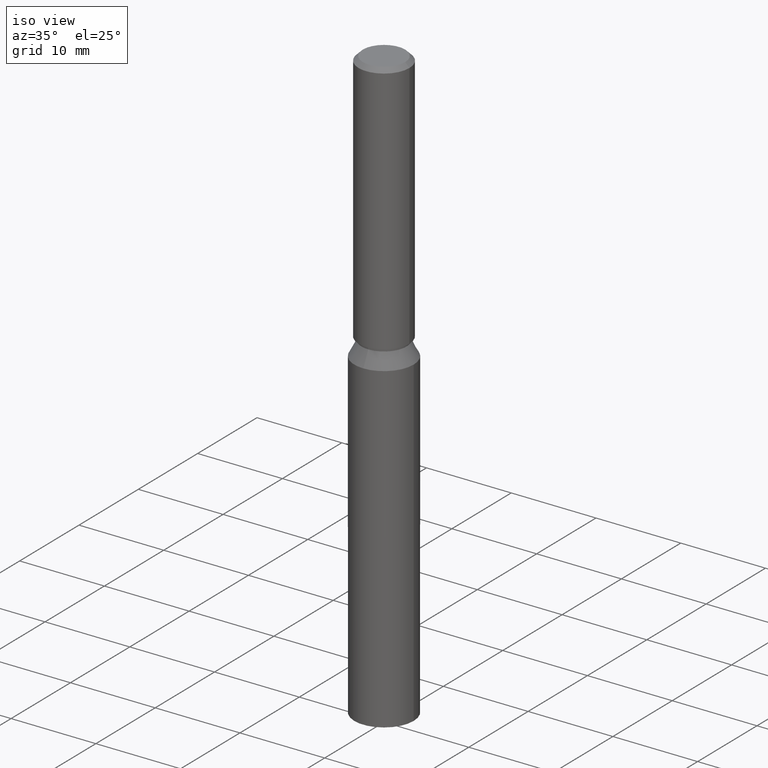
[diagram: clean part render]
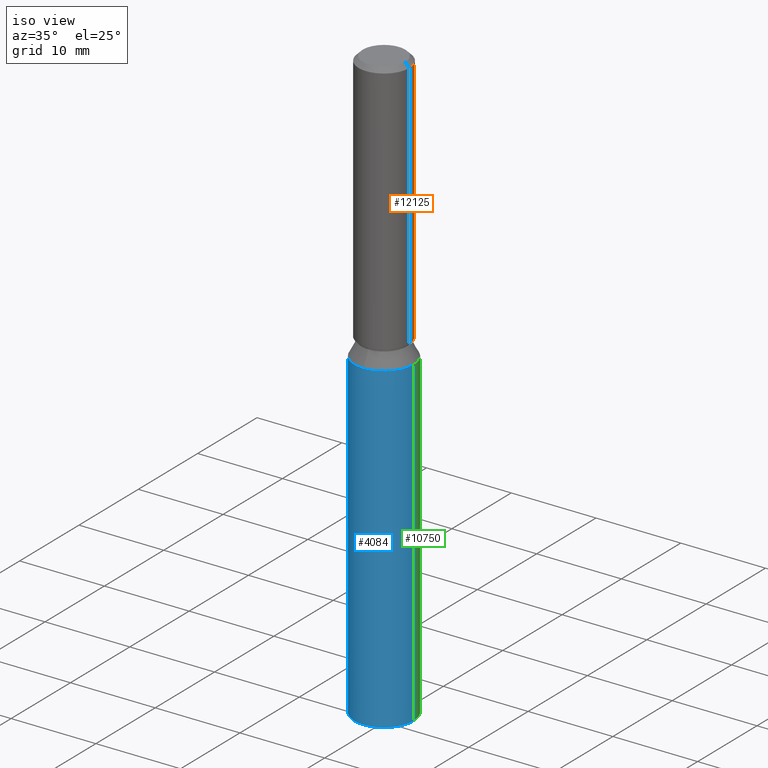
[diagram: same view with three faces highlighted in distinct colors, each labeled with its STEP entity id]
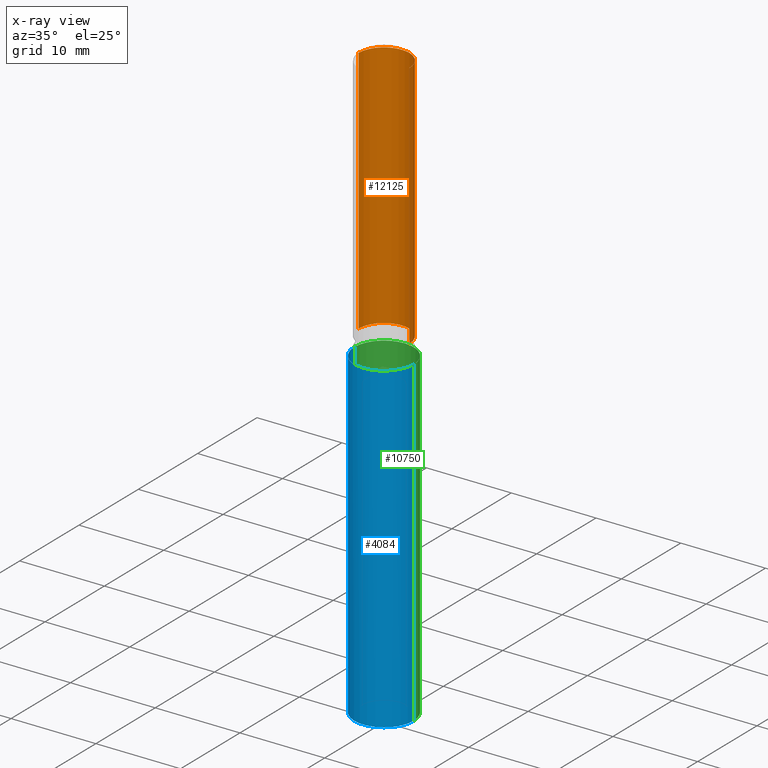
[diagram: x-ray of the same camera — body ghosted, the three highlighted faces saturated]
A machine part, iso view with three faces highlighted in distinct colors.
The next image is the same camera in x-ray (body ghosted, the three faces saturated) — at least one of them is partly hidden behind the body in this view.
Their STEP definitions:

[orange] entity #12125 — the highlighted cylindrical surface (edge-blend (fillet) strip) has radius 3 mm, axis along (-0, -0, -1).
#1198 = CARTESIAN_POINT ( 'NONE',  ( -3.000000000000000400, 0.0000000000000000000, 69.49999999999998600 ) ) ;
#1435 = DIRECTION ( 'NONE',  ( 0.0000000000000000000, 1.000000000000000000, 0.0000000000000000000 ) ) ;
#1473 = DIRECTION ( 'NONE',  ( -0.0000000000000000000, -0.0000000000000000000, -1.000000000000000000 ) ) ;
#1537 = VERTEX_POINT ( 'NONE', #1198 ) ;
#1686 = CARTESIAN_POINT ( 'NONE',  ( 3.000000000000000400, 3.673940397442060400E-016, 69.49999999999998600 ) ) ;
#1716 = DIRECTION ( 'NONE',  ( -0.0000000000000000000, -0.0000000000000000000, -1.000000000000000000 ) ) ;
#1907 = CARTESIAN_POINT ( 'NONE',  ( 3.000000000000000400, 3.673940397442060400E-016, 40.10000000000000100 ) ) ;
#1916 = VERTEX_POINT ( 'NONE', #1686 ) ;
#2077 = DIRECTION ( 'NONE',  ( 1.000000000000000000, 0.0000000000000000000, 0.0000000000000000000 ) ) ;
#2280 = CIRCLE ( 'NONE', #10904, 3.000000000000000400 ) ;
#2496 = CYLINDRICAL_SURFACE ( 'NONE', #7201, 3.000000000000000400 ) ;
#2553 = ORIENTED_EDGE ( 'NONE', *, *, #5059, .F. ) ;
#3249 = CARTESIAN_POINT ( 'NONE',  ( 0.0000000000000000000, 0.0000000000000000000, 40.10000000000000100 ) ) ;
#3781 = FACE_OUTER_BOUND ( 'NONE', #4729, .T. ) ;
#4043 = EDGE_CURVE ( 'NONE', #1537, #1916, #2280, .T. ) ;
#4257 = AXIS2_PLACEMENT_3D ( 'NONE', #3249, #5441, #1435 ) ;
#4729 = EDGE_LOOP ( 'NONE', ( #6567, #7244, #11934, #2553 ) ) ;
#4793 = LINE ( 'NONE', #12699, #12958 ) ;
#5059 = EDGE_CURVE ( 'NONE', #1537, #12953, #11077, .T. ) ;
#5140 = EDGE_CURVE ( 'NONE', #1916, #6557, #4793, .T. ) ;
#5441 = DIRECTION ( 'NONE',  ( -0.0000000000000000000, 1.967742040464204400E-018, -1.000000000000000000 ) ) ;
#5598 = EDGE_CURVE ( 'NONE', #12953, #6557, #6827, .T. ) ;
#6162 = DIRECTION ( 'NONE',  ( 0.0000000000000000000, 0.0000000000000000000, -1.000000000000000000 ) ) ;
#6401 = CARTESIAN_POINT ( 'NONE',  ( -3.000000000000000400, 0.0000000000000000000, 70.00000000000000000 ) ) ;
#6557 = VERTEX_POINT ( 'NONE', #1907 ) ;
#6567 = ORIENTED_EDGE ( 'NONE', *, *, #4043, .T. ) ;
#6661 = DIRECTION ( 'NONE',  ( -0.0000000000000000000, -0.0000000000000000000, -1.000000000000000000 ) ) ;
#6827 = CIRCLE ( 'NONE', #4257, 3.000000000000000400 ) ;
#7201 = AXIS2_PLACEMENT_3D ( 'NONE', #9631, #1716, #10642 ) ;
#7244 = ORIENTED_EDGE ( 'NONE', *, *, #5140, .T. ) ;
#7252 = CARTESIAN_POINT ( 'NONE',  ( 0.0000000000000000000, 0.0000000000000000000, 69.49999999999998600 ) ) ;
#9631 = CARTESIAN_POINT ( 'NONE',  ( 0.0000000000000000000, 0.0000000000000000000, 70.00000000000000000 ) ) ;
#10629 = VECTOR ( 'NONE', #1473, 1000.000000000000000 ) ;
#10642 = DIRECTION ( 'NONE',  ( -1.000000000000000000, 0.0000000000000000000, 0.0000000000000000000 ) ) ;
#10904 = AXIS2_PLACEMENT_3D ( 'NONE', #7252, #6162, #2077 ) ;
#11077 = LINE ( 'NONE', #6401, #10629 ) ;
#11934 = ORIENTED_EDGE ( 'NONE', *, *, #5598, .F. ) ;
#12097 = CARTESIAN_POINT ( 'NONE',  ( -3.000000000000000400, 0.0000000000000000000, 40.10000000000000100 ) ) ;
#12125 = ADVANCED_FACE ( 'NONE', ( #3781 ), #2496, .T. ) ;
#12699 = CARTESIAN_POINT ( 'NONE',  ( 3.000000000000000400, 3.673940397442060400E-016, 70.00000000000000000 ) ) ;
#12953 = VERTEX_POINT ( 'NONE', #12097 ) ;
#12958 = VECTOR ( 'NONE', #6661, 1000.000000000000000 ) ;

[blue] entity #4084 — the highlighted cylindrical surface (edge-blend (fillet) strip) has radius 3.5 mm, axis along (-0, -0, -1).
#46 = EDGE_CURVE ( 'NONE', #1335, #12492, #6606, .T. ) ;
#234 = LINE ( 'NONE', #1532, #9480 ) ;
#370 = VERTEX_POINT ( 'NONE', #5657 ) ;
#1235 = DIRECTION ( 'NONE',  ( -0.0000000000000000000, -0.0000000000000000000, -1.000000000000000000 ) ) ;
#1292 = CARTESIAN_POINT ( 'NONE',  ( 0.0000000000000000000, -7.477419753763976000E-017, 38.00000000000000000 ) ) ;
#1335 = VERTEX_POINT ( 'NONE', #6035 ) ;
#1518 = ORIENTED_EDGE ( 'NONE', *, *, #46, .T. ) ;
#1521 = VECTOR ( 'NONE', #11382, 1000.000000000000000 ) ;
#1532 = CARTESIAN_POINT ( 'NONE',  ( -3.500000000000000000, 0.0000000000000000000, 40.00000000000000000 ) ) ;
#1653 = AXIS2_PLACEMENT_3D ( 'NONE', #11914, #7868, #6005 ) ;
#2172 = ORIENTED_EDGE ( 'NONE', *, *, #3927, .T. ) ;
#3173 = CARTESIAN_POINT ( 'NONE',  ( 0.0000000000000000000, 0.0000000000000000000, 0.0000000000000000000 ) ) ;
#3261 = ORIENTED_EDGE ( 'NONE', *, *, #5688, .F. ) ;
#3927 = EDGE_CURVE ( 'NONE', #8190, #1335, #10797, .T. ) ;
#4084 = ADVANCED_FACE ( 'NONE', ( #4324 ), #11090, .T. ) ;
#4153 = LINE ( 'NONE', #12348, #1521 ) ;
#4324 = FACE_OUTER_BOUND ( 'NONE', #11392, .T. ) ;
#4661 = CARTESIAN_POINT ( 'NONE',  ( 3.500000000000000000, 4.286263797015736600E-016, 0.0000000000000000000 ) ) ;
#5657 = CARTESIAN_POINT ( 'NONE',  ( -3.500000000000000000, 0.0000000000000000000, 0.0000000000000000000 ) ) ;
#5688 = EDGE_CURVE ( 'NONE', #8190, #11787, #4153, .T. ) ;
#6005 = DIRECTION ( 'NONE',  ( 0.0000000000000000000, 1.000000000000000000, 0.0000000000000000000 ) ) ;
#6035 = CARTESIAN_POINT ( 'NONE',  ( 4.286263797015742000E-016, -3.500000000000004900, 38.00000000000000000 ) ) ;
#6350 = AXIS2_PLACEMENT_3D ( 'NONE', #9111, #1235, #8177 ) ;
#6606 = CIRCLE ( 'NONE', #1653, 3.500000000000004900 ) ;
#6867 = ORIENTED_EDGE ( 'NONE', *, *, #8762, .T. ) ;
#7868 = DIRECTION ( 'NONE',  ( -0.0000000000000000000, 1.967742040464204400E-018, -1.000000000000000000 ) ) ;
#8033 = CIRCLE ( 'NONE', #11686, 3.500000000000000000 ) ;
#8177 = DIRECTION ( 'NONE',  ( -1.000000000000000000, 0.0000000000000000000, 0.0000000000000000000 ) ) ;
#8190 = VERTEX_POINT ( 'NONE', #12811 ) ;
#8222 = DIRECTION ( 'NONE',  ( 1.000000000000000000, 0.0000000000000000000, 0.0000000000000000000 ) ) ;
#8236 = DIRECTION ( 'NONE',  ( 0.0000000000000000000, 1.000000000000000000, 0.0000000000000000000 ) ) ;
#8439 = EDGE_CURVE ( 'NONE', #12492, #370, #234, .T. ) ;
#8540 = DIRECTION ( 'NONE',  ( -0.0000000000000000000, -0.0000000000000000000, -1.000000000000000000 ) ) ;
#8714 = ORIENTED_EDGE ( 'NONE', *, *, #8439, .T. ) ;
#8762 = EDGE_CURVE ( 'NONE', #370, #11787, #8033, .T. ) ;
#9111 = CARTESIAN_POINT ( 'NONE',  ( 0.0000000000000000000, 0.0000000000000000000, 40.00000000000000000 ) ) ;
#9480 = VECTOR ( 'NONE', #8540, 1000.000000000000000 ) ;
#9750 = AXIS2_PLACEMENT_3D ( 'NONE', #1292, #12290, #8236 ) ;
#10797 = CIRCLE ( 'NONE', #9750, 3.500000000000004900 ) ;
#11090 = CYLINDRICAL_SURFACE ( 'NONE', #6350, 3.500000000000000000 ) ;
#11382 = DIRECTION ( 'NONE',  ( -0.0000000000000000000, -0.0000000000000000000, -1.000000000000000000 ) ) ;
#11392 = EDGE_LOOP ( 'NONE', ( #3261, #2172, #1518, #8714, #6867 ) ) ;
#11686 = AXIS2_PLACEMENT_3D ( 'NONE', #3173, #12235, #8222 ) ;
#11787 = VERTEX_POINT ( 'NONE', #4661 ) ;
#11914 = CARTESIAN_POINT ( 'NONE',  ( 0.0000000000000000000, -7.477419753763976000E-017, 38.00000000000000000 ) ) ;
#12235 = DIRECTION ( 'NONE',  ( 0.0000000000000000000, 0.0000000000000000000, 1.000000000000000000 ) ) ;
#12290 = DIRECTION ( 'NONE',  ( -0.0000000000000000000, 1.967742040464204400E-018, -1.000000000000000000 ) ) ;
#12348 = CARTESIAN_POINT ( 'NONE',  ( 3.500000000000000000, 4.286263797015736600E-016, 40.00000000000000000 ) ) ;
#12492 = VERTEX_POINT ( 'NONE', #12552 ) ;
#12552 = CARTESIAN_POINT ( 'NONE',  ( -3.500000000000004900, 9.629649721936179300E-032, 38.00000000000000000 ) ) ;
#12811 = CARTESIAN_POINT ( 'NONE',  ( 3.500000000000004900, 4.286263797015743000E-016, 38.00000000000000000 ) ) ;

[green] entity #10750 — the highlighted cylindrical surface (edge-blend (fillet) strip) has radius 3.5 mm, axis along (-0, -0, -1).
#196 = CYLINDRICAL_SURFACE ( 'NONE', #11091, 3.500000000000000000 ) ;
#234 = LINE ( 'NONE', #1532, #9480 ) ;
#350 = DIRECTION ( 'NONE',  ( -0.0000000000000000000, -0.0000000000000000000, -1.000000000000000000 ) ) ;
#370 = VERTEX_POINT ( 'NONE', #5657 ) ;
#550 = CARTESIAN_POINT ( 'NONE',  ( 0.0000000000000000000, 3.500000000000004900, 38.00000000000000000 ) ) ;
#1521 = VECTOR ( 'NONE', #11382, 1000.000000000000000 ) ;
#1532 = CARTESIAN_POINT ( 'NONE',  ( -3.500000000000000000, 0.0000000000000000000, 40.00000000000000000 ) ) ;
#1668 = ORIENTED_EDGE ( 'NONE', *, *, #9853, .T. ) ;
#1893 = DIRECTION ( 'NONE',  ( 1.000000000000000000, 0.0000000000000000000, 0.0000000000000000000 ) ) ;
#3380 = VERTEX_POINT ( 'NONE', #550 ) ;
#4025 = ORIENTED_EDGE ( 'NONE', *, *, #5688, .T. ) ;
#4153 = LINE ( 'NONE', #12348, #1521 ) ;
#4403 = CIRCLE ( 'NONE', #5783, 3.500000000000004900 ) ;
#4469 = EDGE_LOOP ( 'NONE', ( #10302, #1668, #4025, #9993, #10584 ) ) ;
#4661 = CARTESIAN_POINT ( 'NONE',  ( 3.500000000000000000, 4.286263797015736600E-016, 0.0000000000000000000 ) ) ;
#5113 = DIRECTION ( 'NONE',  ( -0.0000000000000000000, 1.967742040464204400E-018, -1.000000000000000000 ) ) ;
#5158 = CARTESIAN_POINT ( 'NONE',  ( 0.0000000000000000000, -7.477419753763976000E-017, 38.00000000000000000 ) ) ;
#5406 = CARTESIAN_POINT ( 'NONE',  ( 0.0000000000000000000, -7.477419753763976000E-017, 38.00000000000000000 ) ) ;
#5657 = CARTESIAN_POINT ( 'NONE',  ( -3.500000000000000000, 0.0000000000000000000, 0.0000000000000000000 ) ) ;
#5688 = EDGE_CURVE ( 'NONE', #8190, #11787, #4153, .T. ) ;
#5783 = AXIS2_PLACEMENT_3D ( 'NONE', #5158, #5113, #6124 ) ;
#6124 = DIRECTION ( 'NONE',  ( 0.0000000000000000000, 1.000000000000000000, 0.0000000000000000000 ) ) ;
#6310 = CARTESIAN_POINT ( 'NONE',  ( 0.0000000000000000000, 0.0000000000000000000, 40.00000000000000000 ) ) ;
#6327 = DIRECTION ( 'NONE',  ( -0.0000000000000000000, 1.967742040464204400E-018, -1.000000000000000000 ) ) ;
#6330 = EDGE_CURVE ( 'NONE', #12492, #3380, #7106, .T. ) ;
#6450 = CIRCLE ( 'NONE', #12615, 3.500000000000000000 ) ;
#7106 = CIRCLE ( 'NONE', #9223, 3.500000000000004900 ) ;
#7315 = DIRECTION ( 'NONE',  ( -1.000000000000000000, 0.0000000000000000000, 0.0000000000000000000 ) ) ;
#8190 = VERTEX_POINT ( 'NONE', #12811 ) ;
#8439 = EDGE_CURVE ( 'NONE', #12492, #370, #234, .T. ) ;
#8540 = DIRECTION ( 'NONE',  ( -0.0000000000000000000, -0.0000000000000000000, -1.000000000000000000 ) ) ;
#8843 = DIRECTION ( 'NONE',  ( 0.0000000000000000000, 0.0000000000000000000, 1.000000000000000000 ) ) ;
#9223 = AXIS2_PLACEMENT_3D ( 'NONE', #5406, #6327, #10359 ) ;
#9451 = EDGE_CURVE ( 'NONE', #11787, #370, #6450, .T. ) ;
#9480 = VECTOR ( 'NONE', #8540, 1000.000000000000000 ) ;
#9853 = EDGE_CURVE ( 'NONE', #3380, #8190, #4403, .T. ) ;
#9993 = ORIENTED_EDGE ( 'NONE', *, *, #9451, .T. ) ;
#10302 = ORIENTED_EDGE ( 'NONE', *, *, #6330, .T. ) ;
#10359 = DIRECTION ( 'NONE',  ( 0.0000000000000000000, 1.000000000000000000, 0.0000000000000000000 ) ) ;
#10584 = ORIENTED_EDGE ( 'NONE', *, *, #8439, .F. ) ;
#10750 = ADVANCED_FACE ( 'NONE', ( #11161 ), #196, .T. ) ;
#11025 = CARTESIAN_POINT ( 'NONE',  ( 0.0000000000000000000, 0.0000000000000000000, 0.0000000000000000000 ) ) ;
#11091 = AXIS2_PLACEMENT_3D ( 'NONE', #6310, #350, #7315 ) ;
#11161 = FACE_OUTER_BOUND ( 'NONE', #4469, .T. ) ;
#11382 = DIRECTION ( 'NONE',  ( -0.0000000000000000000, -0.0000000000000000000, -1.000000000000000000 ) ) ;
#11787 = VERTEX_POINT ( 'NONE', #4661 ) ;
#12348 = CARTESIAN_POINT ( 'NONE',  ( 3.500000000000000000, 4.286263797015736600E-016, 40.00000000000000000 ) ) ;
#12492 = VERTEX_POINT ( 'NONE', #12552 ) ;
#12552 = CARTESIAN_POINT ( 'NONE',  ( -3.500000000000004900, 9.629649721936179300E-032, 38.00000000000000000 ) ) ;
#12615 = AXIS2_PLACEMENT_3D ( 'NONE', #11025, #8843, #1893 ) ;
#12811 = CARTESIAN_POINT ( 'NONE',  ( 3.500000000000004900, 4.286263797015743000E-016, 38.00000000000000000 ) ) ;